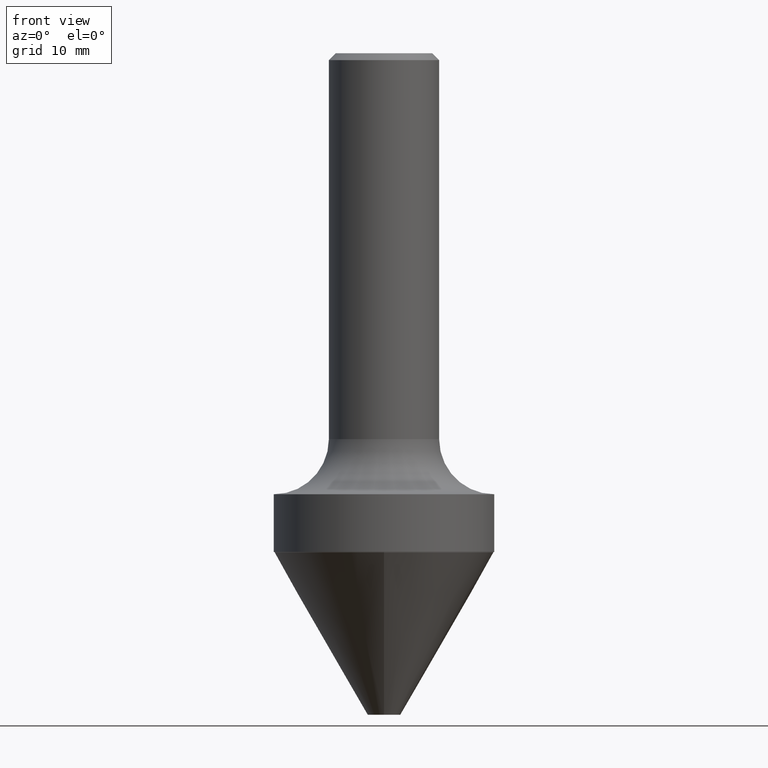
[diagram: clean part render]
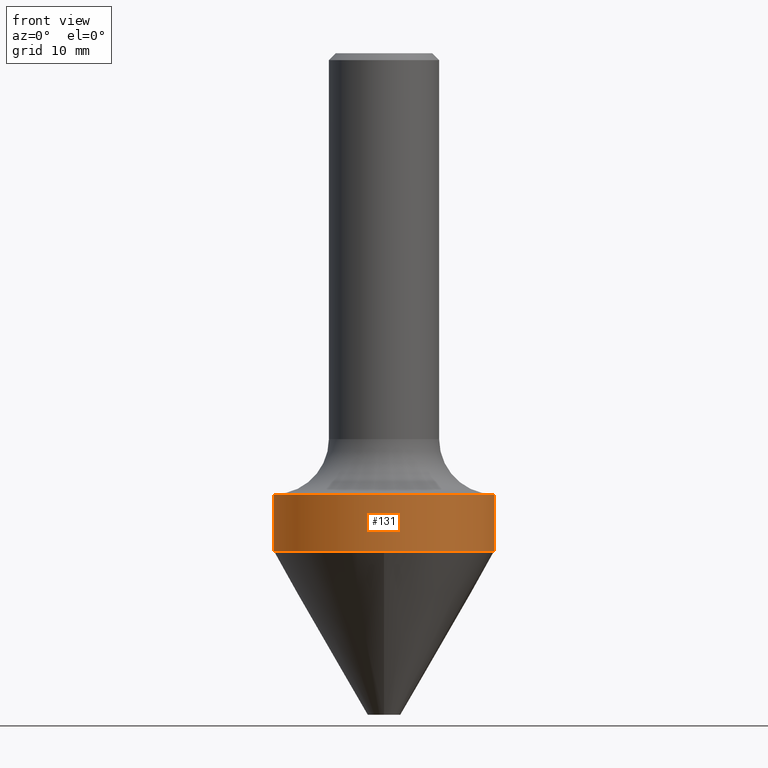
[diagram: same view with one face highlighted and labeled with its STEP entity id]
A machine part, front view. The second image highlights one B-rep face of the part: STEP entity #131.
In plain terms, the highlighted cylindrical surface (partial cylindrical patch) has radius 12.7 mm, axis along (-0, 0, 1).
Its self-contained STEP definition (entity closure, byte-faithful):
#4 = DIRECTION ( 'NONE',  ( -2.445468806185136597E-29, 3.491481338843145583E-15, 1.000000000000000000 ) ) ;
#7 = VERTEX_POINT ( 'NONE', #391 ) ;
#16 = DIRECTION ( 'NONE',  ( 1.000000000000000000, -6.982962677686266711E-15, 0.000000000000000000 ) ) ;
#26 = CARTESIAN_POINT ( 'NONE',  ( 0.5000000000000000000, -1.047444401652942373E-14, -2.000000000000000444 ) ) ;
#41 = CARTESIAN_POINT ( 'NONE',  ( -0.5000000000000000000, 3.552713678800500929E-15, -2.459467545127452891E-29 ) ) ;
#43 = FACE_OUTER_BOUND ( 'NONE', #489, .T. ) ;
#44 = AXIS2_PLACEMENT_3D ( 'NONE', #368, #4, #450 ) ;
#47 = CARTESIAN_POINT ( 'NONE',  ( -0.5000000000000000000, -3.886142813183858353E-15, -2.261146355975725442 ) ) ;
#60 = CYLINDRICAL_SURFACE ( 'NONE', #44, 0.5000000000000000000 ) ;
#78 = AXIS2_PLACEMENT_3D ( 'NONE', #494, #372, #16 ) ;
#105 = VERTEX_POINT ( 'NONE', #192 ) ;
#118 = AXIS2_PLACEMENT_3D ( 'NONE', #287, #442, #290 ) ;
#131 = ADVANCED_FACE ( 'NONE', ( #43 ), #60, .T. ) ;
#132 = LINE ( 'NONE', #490, #474 ) ;
#147 = EDGE_CURVE ( 'NONE', #7, #303, #132, .T. ) ;
#173 = ORIENTED_EDGE ( 'NONE', *, *, #499, .T. ) ;
#191 = ORIENTED_EDGE ( 'NONE', *, *, #147, .T. ) ;
#192 = CARTESIAN_POINT ( 'NONE',  ( -0.5000000000000000000, -3.430248998885791025E-15, -2.000000000000000444 ) ) ;
#207 = CIRCLE ( 'NONE', #118, 0.5000000000000000000 ) ;
#287 = CARTESIAN_POINT ( 'NONE',  ( 4.890937612370273754E-29, -6.982962677686291954E-15, -2.000000000000000444 ) ) ;
#290 = DIRECTION ( 'NONE',  ( 1.000000000000000000, -6.982962677686266711E-15, 0.000000000000000000 ) ) ;
#301 = VECTOR ( 'NONE', #477, 39.37007874015748143 ) ;
#303 = VERTEX_POINT ( 'NONE', #26 ) ;
#332 = EDGE_CURVE ( 'NONE', #105, #303, #207, .T. ) ;
#361 = LINE ( 'NONE', #41, #301 ) ;
#364 = DIRECTION ( 'NONE',  ( -2.445468806185136877E-29, 3.491481338843145188E-15, 1.000000000000000000 ) ) ;
#368 = CARTESIAN_POINT ( 'NONE',  ( 0.000000000000000000, 0.000000000000000000, 0.000000000000000000 ) ) ;
#370 = CIRCLE ( 'NONE', #78, 0.5000000000000000000 ) ;
#372 = DIRECTION ( 'NONE',  ( -2.445468806185136597E-29, 3.491481338843145583E-15, 1.000000000000000000 ) ) ;
#391 = CARTESIAN_POINT ( 'NONE',  ( 0.5000000000000000000, -1.138623164512555997E-14, -2.261146355975725442 ) ) ;
#405 = EDGE_CURVE ( 'NONE', #472, #105, #361, .T. ) ;
#442 = DIRECTION ( 'NONE',  ( -2.445468806185136597E-29, 3.491481338843145583E-15, 1.000000000000000000 ) ) ;
#448 = ORIENTED_EDGE ( 'NONE', *, *, #405, .F. ) ;
#450 = DIRECTION ( 'NONE',  ( 1.000000000000000000, -6.982962677686266711E-15, 4.876176775795935793E-29 ) ) ;
#472 = VERTEX_POINT ( 'NONE', #47 ) ;
#474 = VECTOR ( 'NONE', #364, 39.37007874015748143 ) ;
#477 = DIRECTION ( 'NONE',  ( -2.445468806185136877E-29, 3.491481338843145188E-15, 1.000000000000000000 ) ) ;
#479 = ORIENTED_EDGE ( 'NONE', *, *, #332, .F. ) ;
#489 = EDGE_LOOP ( 'NONE', ( #448, #173, #191, #479 ) ) ;
#490 = CARTESIAN_POINT ( 'NONE',  ( 0.5000000000000000000, -3.491481338843133355E-15, 2.438088387897967896E-29 ) ) ;
#494 = CARTESIAN_POINT ( 'NONE',  ( 5.529562879757829202E-29, -7.894750306282426611E-15, -2.261146355975725442 ) ) ;
#499 = EDGE_CURVE ( 'NONE', #472, #7, #370, .T. ) ;